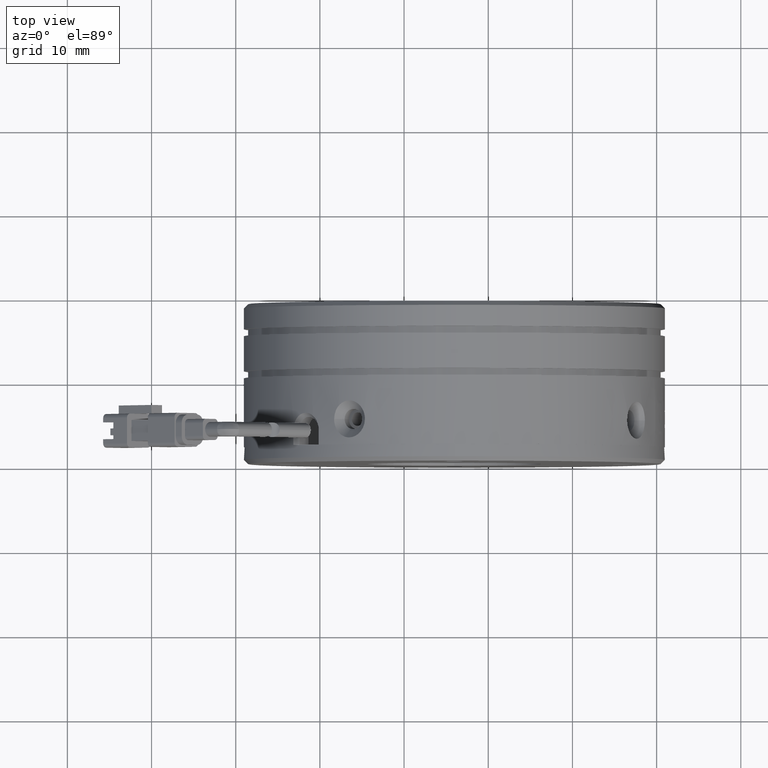
[diagram: clean part render]
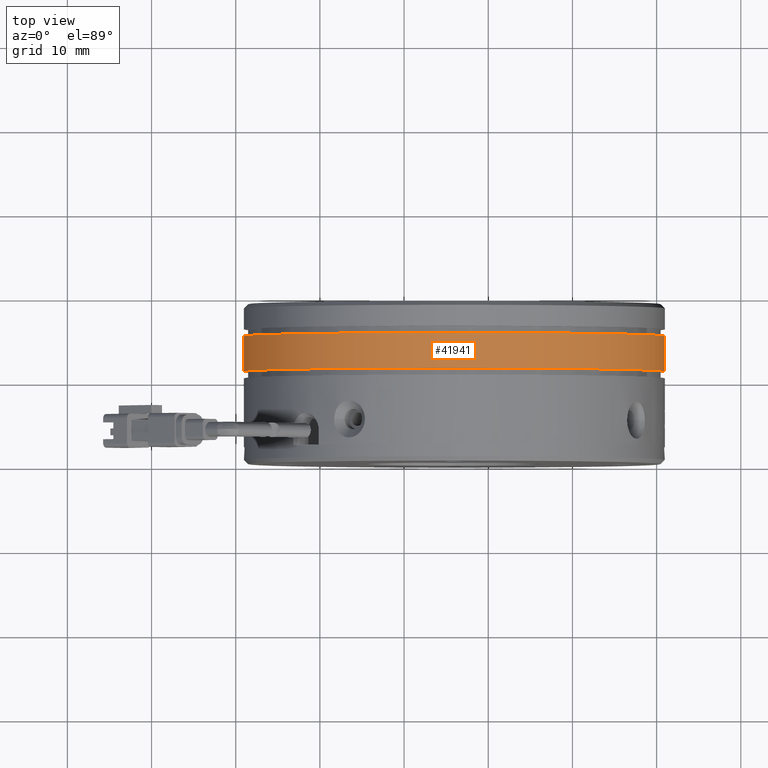
[diagram: same view with one face highlighted and labeled with its STEP entity id]
A machine part, top view. The second image highlights one B-rep face of the part: STEP entity #41941.
In plain terms, the highlighted cylindrical surface (partial cylindrical patch) has radius 25 mm, axis along (0, 1, -0).
Its self-contained STEP definition (entity closure, byte-faithful):
#3491 = CARTESIAN_POINT ( 'NONE',  ( -29.02581863871307600, 11.16823414706071000, 3.503328269843786200E-016 ) ) ;
#4293 = AXIS2_PLACEMENT_3D ( 'NONE', #51642, #22999, #56460 ) ;
#6481 = CARTESIAN_POINT ( 'NONE',  ( -29.02581863871307600, 15.36823414706071000, 3.503328269843786200E-016 ) ) ;
#8281 = AXIS2_PLACEMENT_3D ( 'NONE', #18890, #52386, #23753 ) ;
#11333 = CARTESIAN_POINT ( 'NONE',  ( 20.97418136128692400, 11.16823414706071000, 3.422791846577617100E-015 ) ) ;
#13935 = CARTESIAN_POINT ( 'NONE',  ( -29.02581863871307600, 2.168234147060708900, 3.503328269843786200E-016 ) ) ;
#17973 = DIRECTION ( 'NONE',  ( -1.000000000000000000, 0.0000000000000000000, -2.168404344971001200E-019 ) ) ;
#18890 = CARTESIAN_POINT ( 'NONE',  ( -4.025818638713078100, 15.36823414706071000, 3.557538378468061400E-016 ) ) ;
#20948 = DIRECTION ( 'NONE',  ( 0.0000000000000000000, 1.000000000000000000, -0.0000000000000000000 ) ) ;
#22660 = CARTESIAN_POINT ( 'NONE',  ( -4.025818638713078100, 2.168234147060708900, 3.557538378468061400E-016 ) ) ;
#22999 = DIRECTION ( 'NONE',  ( 0.0000000000000000000, 1.000000000000000000, -0.0000000000000000000 ) ) ;
#23283 = CARTESIAN_POINT ( 'NONE',  ( 20.97418136128692400, 15.36823414706071000, 3.422791846577617100E-015 ) ) ;
#23397 = AXIS2_PLACEMENT_3D ( 'NONE', #22660, #27458, #17973 ) ;
#23753 = DIRECTION ( 'NONE',  ( -1.000000000000000000, 0.0000000000000000000, -2.168404344971001200E-019 ) ) ;
#23996 = VECTOR ( 'NONE', #32848, 1000.000000000000000 ) ;
#24031 = VERTEX_POINT ( 'NONE', #3491 ) ;
#27197 = VECTOR ( 'NONE', #20948, 1000.000000000000000 ) ;
#27458 = DIRECTION ( 'NONE',  ( 0.0000000000000000000, 1.000000000000000000, -0.0000000000000000000 ) ) ;
#30137 = CIRCLE ( 'NONE', #4293, 25.00000000000000000 ) ;
#30206 = FACE_OUTER_BOUND ( 'NONE', #43590, .T. ) ;
#32848 = DIRECTION ( 'NONE',  ( 0.0000000000000000000, 1.000000000000000000, -0.0000000000000000000 ) ) ;
#34113 = CIRCLE ( 'NONE', #8281, 25.00000000000000000 ) ;
#35211 = CARTESIAN_POINT ( 'NONE',  ( 20.97418136128692400, 2.168234147060708900, 3.422791846577617100E-015 ) ) ;
#36928 = CYLINDRICAL_SURFACE ( 'NONE', #23397, 25.00000000000000000 ) ;
#38538 = ORIENTED_EDGE ( 'NONE', *, *, #45503, .T. ) ;
#39977 = LINE ( 'NONE', #35211, #27197 ) ;
#41941 = ADVANCED_FACE ( 'NONE', ( #30206 ), #36928, .T. ) ;
#43590 = EDGE_LOOP ( 'NONE', ( #38538, #43780, #44634, #48954 ) ) ;
#43780 = ORIENTED_EDGE ( 'NONE', *, *, #49466, .T. ) ;
#44401 = VERTEX_POINT ( 'NONE', #23283 ) ;
#44634 = ORIENTED_EDGE ( 'NONE', *, *, #54652, .T. ) ;
#45503 = EDGE_CURVE ( 'NONE', #24031, #45792, #30137, .T. ) ;
#45792 = VERTEX_POINT ( 'NONE', #11333 ) ;
#47951 = LINE ( 'NONE', #13935, #23996 ) ;
#48954 = ORIENTED_EDGE ( 'NONE', *, *, #58668, .F. ) ;
#49466 = EDGE_CURVE ( 'NONE', #45792, #44401, #39977, .T. ) ;
#51642 = CARTESIAN_POINT ( 'NONE',  ( -4.025818638713078100, 11.16823414706071000, 3.557538378468061400E-016 ) ) ;
#52270 = VERTEX_POINT ( 'NONE', #6481 ) ;
#52386 = DIRECTION ( 'NONE',  ( -0.0000000000000000000, -1.000000000000000000, 0.0000000000000000000 ) ) ;
#54652 = EDGE_CURVE ( 'NONE', #44401, #52270, #34113, .T. ) ;
#56460 = DIRECTION ( 'NONE',  ( -1.000000000000000000, 0.0000000000000000000, -2.168404344971001200E-019 ) ) ;
#58668 = EDGE_CURVE ( 'NONE', #24031, #52270, #47951, .T. ) ;